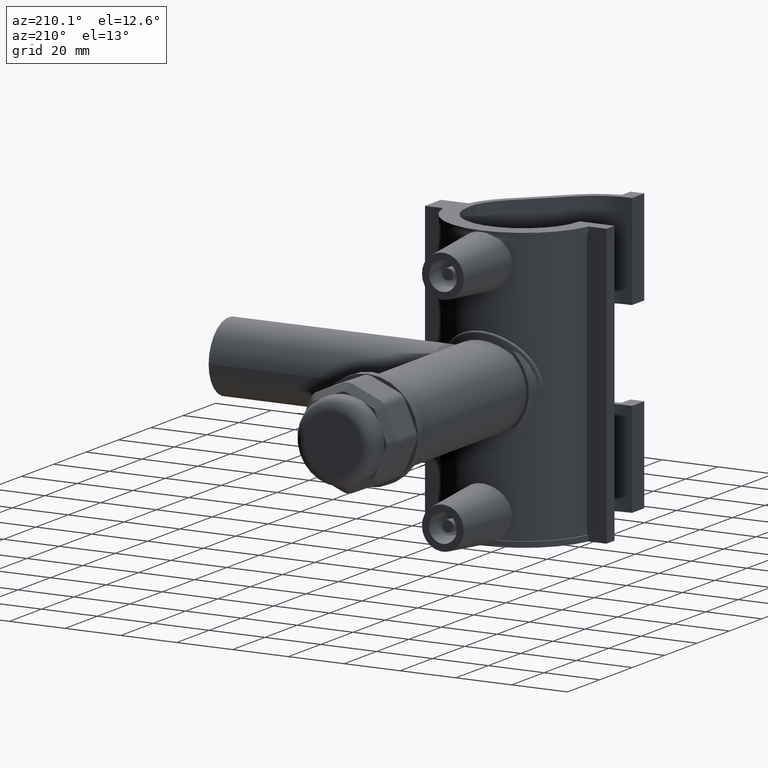
[diagram: clean part render]
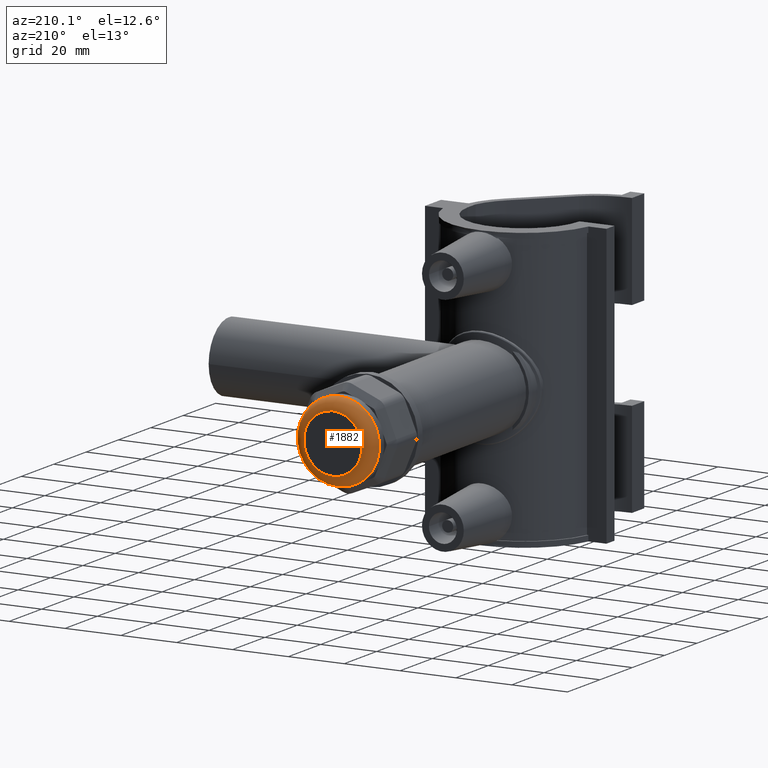
[diagram: same view with one face highlighted and labeled with its STEP entity id]
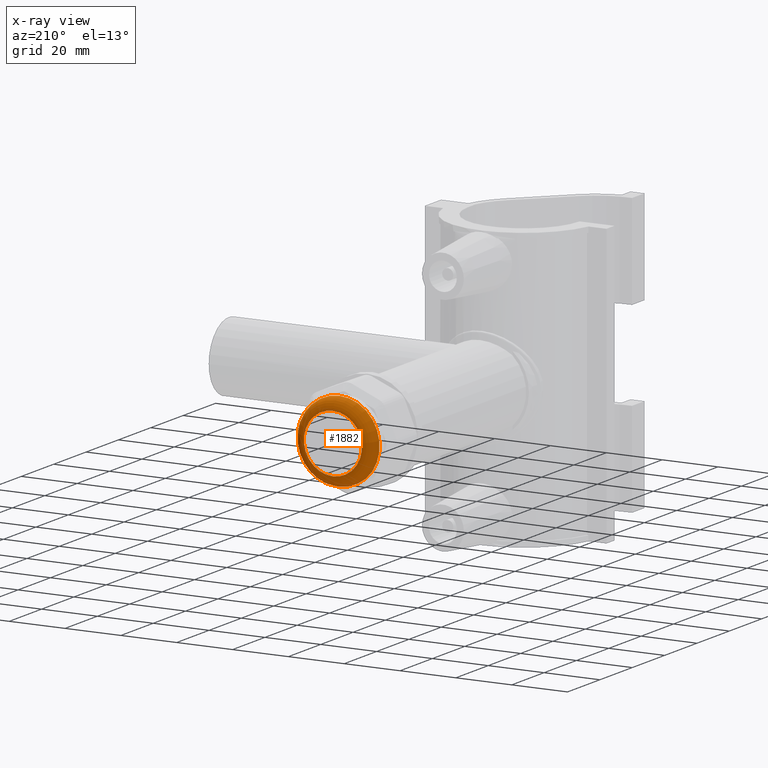
[diagram: x-ray of the same camera — body ghosted, the highlighted face saturated]
A machine part, auxiliary view. The second image highlights one B-rep face of the part: STEP entity #1882.
The next image is the same camera in x-ray: the body ghosted, the highlighted face saturated — about 0% of this face is hidden behind the body in this view.
In plain terms, the highlighted toroidal blend (fillet) surface has major radius 10.4 mm and minor (blend) radius 4 mm.
Its self-contained STEP definition (entity closure, byte-faithful):
#17=TOROIDAL_SURFACE('',#2055,10.4,4.);
#60=FACE_BOUND('',#389,.T.);
#136=CIRCLE('',#2037,10.4);
#144=CIRCLE('',#2054,14.4);
#257=FACE_OUTER_BOUND('',#388,.T.);
#388=EDGE_LOOP('',(#1443));
#389=EDGE_LOOP('',(#1444));
#860=VERTEX_POINT('',#3411);
#875=VERTEX_POINT('',#3443);
#1071=EDGE_CURVE('',#860,#860,#136,.T.);
#1087=EDGE_CURVE('',#875,#875,#144,.T.);
#1443=ORIENTED_EDGE('',*,*,#1087,.T.);
#1444=ORIENTED_EDGE('',*,*,#1071,.T.);
#1882=ADVANCED_FACE('',(#257,#60),#17,.T.);
#2037=AXIS2_PLACEMENT_3D('',#3412,#2381,#2382);
#2054=AXIS2_PLACEMENT_3D('',#3444,#2415,#2416);
#2055=AXIS2_PLACEMENT_3D('',#3445,#2417,#2418);
#2381=DIRECTION('center_axis',(0.,-1.,-3.06161699786838E-16));
#2382=DIRECTION('ref_axis',(6.12323399573677E-17,3.06161699786838E-16,-1.));
#2415=DIRECTION('center_axis',(0.,1.,3.06161699786838E-16));
#2416=DIRECTION('ref_axis',(6.12323399573677E-17,3.08395284618099E-16,-1.));
#2417=DIRECTION('center_axis',(0.,1.,3.06161699786838E-16));
#2418=DIRECTION('ref_axis',(0.,0.,1.));
#3411=CARTESIAN_POINT('',(-1.91044900666987E-15,118.,10.4));
#3412=CARTESIAN_POINT('Origin',(0.,118.,3.00038465791102E-14));
#3443=CARTESIAN_POINT('',(8.81745695386094E-16,114.,14.4));
#3444=CARTESIAN_POINT('Origin',(0.,114.,2.87791997799628E-14));
#3445=CARTESIAN_POINT('Origin',(0.,114.,2.87791997799628E-14));